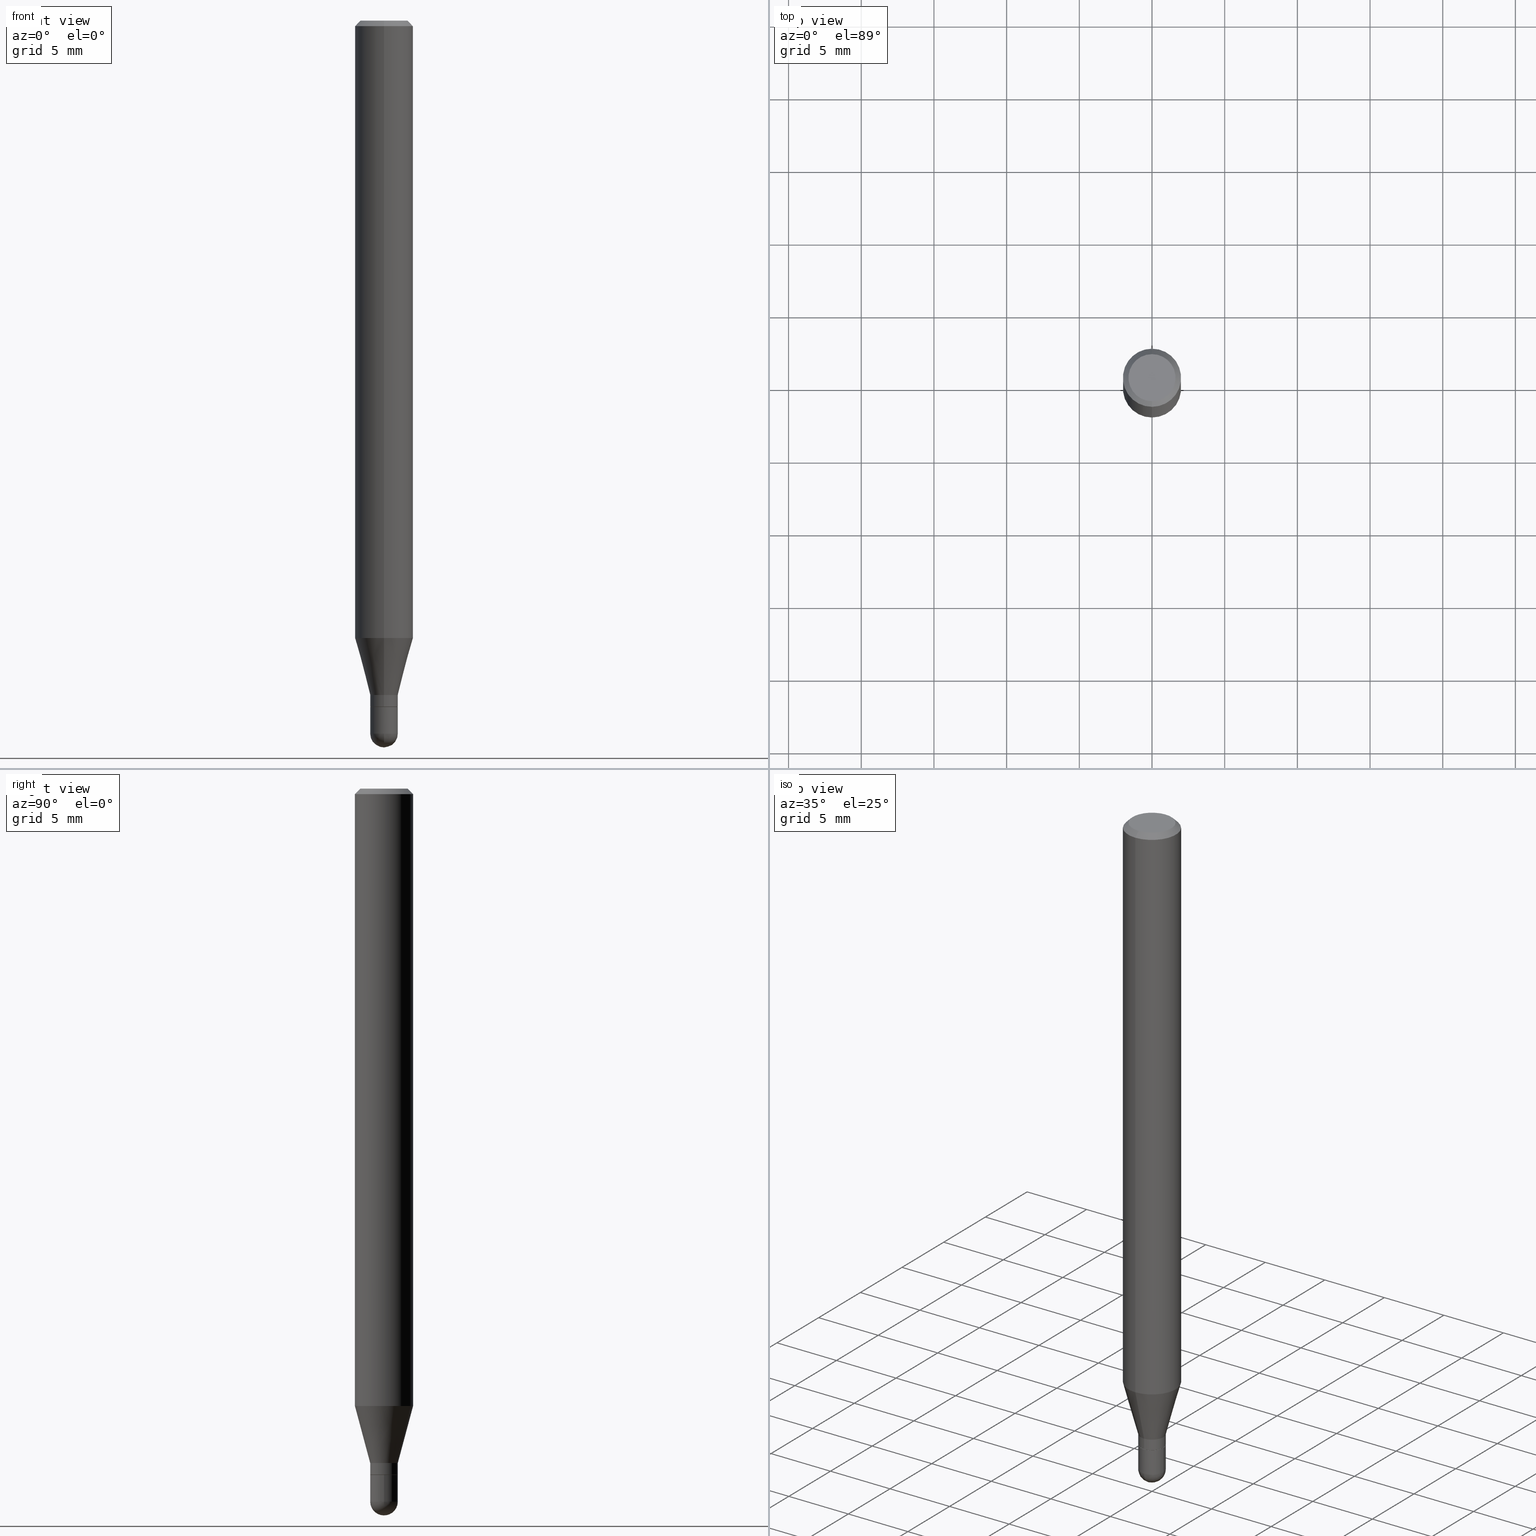
[diagram: canonical four-view strip — front | top / right | iso, engineering-drawing reading convention]
A machine part, canonical four-view strip (front | top / right | iso — engineering-drawing reading convention). The complete STEP part file that produces these views, byte-faithful:
ISO-10303-21;
HEADER;
FILE_DESCRIPTION (( 'STEP AP203' ),
    '1' );
FILE_NAME ('02040.STEP',
    '2024-03-07T19:59:12',
    ( '' ),
    ( '' ),
    'SwSTEP 2.0',
    'SolidWorks 2023',
    '' );
FILE_SCHEMA (( 'CONFIG_CONTROL_DESIGN' ));
ENDSEC;

DATA;
#1 = APPROVAL_ROLE ( '' ) ;
#2 = AXIS2_PLACEMENT_3D ( 'NONE', #67, #350, #188 ) ;
#3 = PERSON_AND_ORGANIZATION_ROLE ( 'classification_officer' ) ;
#4 = CARTESIAN_POINT ( 'NONE',  ( 2.657429831743214183E-16, 0.03739999999999330665, -1.857800000000000118 ) ) ;
#5 = DIRECTION ( 'NONE',  ( -2.445444900706578132E-29, 3.491515572849056349E-15, 1.000000000000000000 ) ) ;
#6 = ORIENTED_EDGE ( 'NONE', *, *, #474, .F. ) ;
#7 = APPROVAL_STATUS ( 'not_yet_approved' ) ;
#8 = ADVANCED_FACE ( 'NONE', ( #266 ), #464, .T. ) ;
#9 = DIRECTION ( 'NONE',  ( -2.445444900706578132E-29, 3.491515572849056349E-15, 1.000000000000000000 ) ) ;
#10 = CARTESIAN_POINT ( 'NONE',  ( 5.595524044111200197E-16, 0.07874999999999994504, -0.01500000000000004108 ) ) ;
#11 = ORIENTED_EDGE ( 'NONE', *, *, #265, .F. ) ;
#12 = LINE ( 'NONE', #488, #235 ) ;
#13 = ORIENTED_EDGE ( 'NONE', *, *, #316, .F. ) ;
#14 = CALENDAR_DATE ( 2024, 7, 3 ) ;
#15 = AXIS2_PLACEMENT_3D ( 'NONE', #145, #134, #175 ) ;
#16 = DIRECTION ( 'NONE',  ( -2.445444900706578413E-29, 3.491515572849055955E-15, 1.000000000000000000 ) ) ;
#17 = DIRECTION ( 'NONE',  ( 4.937700262164548042E-15, 0.7071067811865451302, -0.7071067811865499042 ) ) ;
#18 = EDGE_LOOP ( 'NONE', ( #459, #306, #136, #11 ) ) ;
#19 = CARTESIAN_POINT ( 'NONE',  ( -5.499083108677933457E-16, -0.07875000000000000056, 2.749568513618631485E-16 ) ) ;
#20 = DIRECTION ( 'NONE',  ( -4.851104656540964275E-15, -0.7071067811865500152, -0.7071067811865450192 ) ) ;
#21 = VERTEX_POINT ( 'NONE', #222 ) ;
#22 = EDGE_CURVE ( 'NONE', #227, #155, #355, .T. ) ;
#23 = CARTESIAN_POINT ( 'NONE',  ( 0.000000000000000000, 0.000000000000000000, 0.000000000000000000 ) ) ;
#24 = ADVANCED_FACE ( 'NONE', ( #30 ), #116, .F. ) ;
#25 = ORIENTED_EDGE ( 'NONE', *, *, #29, .T. ) ;
#26 = AXIS2_PLACEMENT_3D ( 'NONE', #332, #483, #135 ) ;
#27 = AXIS2_PLACEMENT_3D ( 'NONE', #360, #162, #313 ) ;
#28 = DIRECTION ( 'NONE',  ( 1.000000000000000000, -6.982962677686276177E-15, 0.000000000000000000 ) ) ;
#29 = EDGE_CURVE ( 'NONE', #504, #66, #441, .T. ) ;
#30 = FACE_OUTER_BOUND ( 'NONE', #391, .T. ) ;
#31 = CARTESIAN_POINT ( 'NONE',  ( 5.595524044111194280E-16, 0.07874999999999411637, -1.672179699107027684 ) ) ;
#32 = SPHERICAL_SURFACE ( 'NONE', #2, 0.03739999999999986391 ) ;
#33 = DIRECTION ( 'NONE',  ( -6.982962677686265133E-15, -1.000000000000000000, 0.000000000000000000 ) ) ;
#34 = CIRCLE ( 'NONE', #77, 0.03739999999999992636 ) ;
#35 = DIRECTION ( 'NONE',  ( -2.445468806185136597E-29, 3.491481338843145583E-15, 1.000000000000000000 ) ) ;
#36 = CARTESIAN_POINT ( 'NONE',  ( -5.749252365424432969E-45, 8.208569393781345367E-31, 2.351004663308204061E-16 ) ) ;
#37 = CIRCLE ( 'NONE', #70, 0.06375000000000000111 ) ;
#38 = ORIENTED_EDGE ( 'NONE', *, *, #481, .F. ) ;
#39 = DIRECTION ( 'NONE',  ( -2.445444900706578413E-29, 3.491515572849055955E-15, 1.000000000000000000 ) ) ;
#40 = PERSON_AND_ORGANIZATION_ROLE ( 'design_supplier' ) ;
#41 = DIRECTION ( 'NONE',  ( 2.445444900706578413E-29, -3.491515572849055955E-15, -1.000000000000000000 ) ) ;
#42 = DIRECTION ( 'NONE',  ( 1.000000000000000000, -6.982962677686276177E-15, 0.000000000000000000 ) ) ;
#43 = EDGE_LOOP ( 'NONE', ( #147, #234, #218, #182 ) ) ;
#44 = CIRCLE ( 'NONE', #119, 0.06375000000000000111 ) ;
#45 = ADVANCED_FACE ( 'NONE', ( #202 ), #159, .T. ) ;
#46 = DATE_AND_TIME ( #366, #319 ) ;
#47 = APPROVAL_PERSON_ORGANIZATION ( #330, #505, #457 ) ;
#48 = DIRECTION ( 'NONE',  ( 2.438088387897960049E-29, -3.491481338843145188E-15, -1.000000000000000000 ) ) ;
#49 = FACE_OUTER_BOUND ( 'NONE', #456, .T. ) ;
#50 = ORIENTED_EDGE ( 'NONE', *, *, #209, .T. ) ;
#51 = DATE_TIME_ROLE ( 'creation_date' ) ;
#52 = MANIFOLD_SOLID_BREP ( 'Body-Move/Copy2[2]', #84 ) ;
#53 = DIRECTION ( 'NONE',  ( -6.982962677686265133E-15, -1.000000000000000000, 0.000000000000000000 ) ) ;
#54 = CARTESIAN_POINT ( 'NONE',  ( -0.03739999999999999575, -6.349566709531830924E-15, -1.931100000000000039 ) ) ;
#55 = VERTEX_POINT ( 'NONE', #314 ) ;
#56 = PERSON_AND_ORGANIZATION_ROLE ( 'creator' ) ;
#57 = CARTESIAN_POINT ( 'NONE',  ( 4.089223318246340939E-29, -5.838441460034234985E-15, -1.672179699107027462 ) ) ;
#58 = CARTESIAN_POINT ( 'NONE',  ( -2.611628041454658086E-16, -0.03739999999999991942, 1.305826824245544317E-16 ) ) ;
#59 = FACE_OUTER_BOUND ( 'NONE', #479, .T. ) ;
#60 = ORIENTED_EDGE ( 'NONE', *, *, #191, .T. ) ;
#61 = CIRCLE ( 'NONE', #286, 0.03740000000000000269 ) ;
#62 = DIRECTION ( 'NONE',  ( -2.445444900706578413E-29, 3.491515572849055955E-15, 1.000000000000000000 ) ) ;
#63 = CARTESIAN_POINT ( 'NONE',  ( 3.668167351059810218E-31, -5.237273359273502137E-17, -0.01499999999999976526 ) ) ;
#64 = ORIENTED_EDGE ( 'NONE', *, *, #399, .F. ) ;
#65 = CARTESIAN_POINT ( 'NONE',  ( -4.888104823412213911E-16, -0.06375000000000000111, 4.576845840999477074E-16 ) ) ;
#66 = VERTEX_POINT ( 'NONE', #256 ) ;
#67 = CARTESIAN_POINT ( 'NONE',  ( 4.719246489702586893E-29, -6.746979792468809497E-15, -1.931100000000000039 ) ) ;
#68 = ORIENTED_EDGE ( 'NONE', *, *, #338, .T. ) ;
#69 = UNCERTAINTY_MEASURE_WITH_UNIT (LENGTH_MEASURE( 1.000000000000000082E-05 ), #126, 'distance_accuracy_value', 'NONE');
#70 = AXIS2_PLACEMENT_3D ( 'NONE', #36, #273, #439 ) ;
#71 = ORGANIZATION ( 'UNSPECIFIED', 'UNSPECIFIED', '' ) ;
#72 = ORIENTED_EDGE ( 'NONE', *, *, #402, .F. ) ;
#73 = DIRECTION ( 'NONE',  ( -6.982962677686266711E-15, -1.000000000000000000, 3.491515572849056349E-15 ) ) ;
#74 = ORIENTED_EDGE ( 'NONE', *, *, #191, .F. ) ;
#75 = DIRECTION ( 'NONE',  ( -2.445444900706578413E-29, 3.491515572849055955E-15, 1.000000000000000000 ) ) ;
#76 = EDGE_CURVE ( 'NONE', #412, #142, #205, .T. ) ;
#77 = AXIS2_PLACEMENT_3D ( 'NONE', #294, #409, #326 ) ;
#78 = EDGE_CURVE ( 'NONE', #351, #66, #123, .T. ) ;
#79 = DIRECTION ( 'NONE',  ( 1.000000000000000000, -6.982962677686274599E-15, 0.000000000000000000 ) ) ;
#80 = EDGE_CURVE ( 'NONE', #448, #344, #244, .T. ) ;
#81 = DIRECTION ( 'NONE',  ( 2.445444900706578132E-29, -3.491515572849056349E-15, -1.000000000000000000 ) ) ;
#82 = CARTESIAN_POINT ( 'NONE',  ( 3.668167351059810218E-31, -5.237273359273502137E-17, -0.01499999999999976526 ) ) ;
#83 = APPLICATION_CONTEXT ( 'configuration controlled 3d designs of mechanical parts and assemblies' ) ;
#84 = CLOSED_SHELL ( 'NONE', ( #434, #109, #200, #469, #427, #365, #45, #346, #480, #24, #231, #118 ) ) ;
#85 = AXIS2_PLACEMENT_3D ( 'NONE', #82, #39, #102 ) ;
#86 = DATE_AND_TIME ( #445, #362 ) ;
#87 = CARTESIAN_POINT ( 'NONE',  ( 4.544370258983034679E-29, -6.488283389025400978E-15, -1.858300000000000063 ) ) ;
#88 = PERSON_AND_ORGANIZATION ( #425, #71 ) ;
#89 = CARTESIAN_POINT ( 'NONE',  ( 2.611628041455117597E-16, 0.03739999999999351482, -1.858300000000000063 ) ) ;
#90 = DIRECTION ( 'NONE',  ( 1.000000000000000000, -6.982962677686276177E-15, 0.000000000000000000 ) ) ;
#91 = ORIENTED_EDGE ( 'NONE', *, *, #80, .T. ) ;
#92 = AXIS2_PLACEMENT_3D ( 'NONE', #63, #281, #217 ) ;
#93 = SHAPE_DEFINITION_REPRESENTATION ( #212, #320 ) ;
#94 = EDGE_CURVE ( 'NONE', #155, #504, #124, .T. ) ;
#95 = FACE_OUTER_BOUND ( 'NONE', #379, .T. ) ;
#96 = DIRECTION ( 'NONE',  ( 1.000000000000000000, -6.982962677686265922E-15, 4.883557194083112340E-29 ) ) ;
#97 = ORIENTED_EDGE ( 'NONE', *, *, #131, .T. ) ;
#98 =( NAMED_UNIT ( * ) PLANE_ANGLE_UNIT ( ) SI_UNIT ( $, .RADIAN. ) );
#99 = DIRECTION ( 'NONE',  ( 6.982962677686264344E-15, 1.000000000000000000, -3.496114991891765576E-15 ) ) ;
#100 = VERTEX_POINT ( 'NONE', #458 ) ;
#101 = COORDINATED_UNIVERSAL_TIME_OFFSET ( 5, 0, .BEHIND. ) ;
#102 = DIRECTION ( 'NONE',  ( -6.982962677686264344E-15, -1.000000000000000000, 3.496114991891765576E-15 ) ) ;
#103 = CARTESIAN_POINT ( 'NONE',  ( 5.499083108677937401E-16, 0.07874999999999994504, -0.01500000000000004108 ) ) ;
#104 = ORIENTED_EDGE ( 'NONE', *, *, #195, .T. ) ;
#105 = CONICAL_SURFACE ( 'NONE', #300, 0.07875000000000000056, 0.7853981633974483900 ) ;
#106 = CC_DESIGN_APPROVAL ( #417, ( #470 ) ) ;
#107 = CARTESIAN_POINT ( 'NONE',  ( 2.621902694955223933E-16, 0.03689999999999351438, -1.858300000000000063 ) ) ;
#108 = ORIENTED_EDGE ( 'NONE', *, *, #357, .F. ) ;
#109 = ADVANCED_FACE ( 'NONE', ( #248 ), #431, .T. ) ;
#110 = ORIENTED_EDGE ( 'NONE', *, *, #94, .T. ) ;
#111 = CC_DESIGN_DATE_AND_TIME_ASSIGNMENT ( #166, #203, ( #186 ) ) ;
#112 = ORIENTED_EDGE ( 'NONE', *, *, #143, .F. ) ;
#113 = CYLINDRICAL_SURFACE ( 'NONE', #224, 0.03739999999999991942 ) ;
#114 = AXIS2_PLACEMENT_3D ( 'NONE', #168, #239, #413 ) ;
#115 = AXIS2_PLACEMENT_3D ( 'NONE', #305, #152, #117 ) ;
#116 = PLANE ( 'NONE',  #354 ) ;
#117 = DIRECTION ( 'NONE',  ( -6.982962677686265133E-15, -1.000000000000000000, 0.000000000000000000 ) ) ;
#118 = ADVANCED_FACE ( 'NONE', ( #49 ), #447, .T. ) ;
#119 = AXIS2_PLACEMENT_3D ( 'NONE', #129, #493, #280 ) ;
#120 = AXIS2_PLACEMENT_3D ( 'NONE', #23, #183, #353 ) ;
#121 = DIRECTION ( 'NONE',  ( -2.445468806185136597E-29, 3.491481338843145583E-15, 1.000000000000000000 ) ) ;
#122 = AXIS2_PLACEMENT_3D ( 'NONE', #359, #419, #42 ) ;
#123 = CIRCLE ( 'NONE', #312, 0.03739999999999986391 ) ;
#124 = CIRCLE ( 'NONE', #185, 0.03739999999999999575 ) ;
#125 = LOCAL_TIME ( 14, 59, 11.00000000000000000, #238 ) ;
#126 =( CONVERSION_BASED_UNIT ( 'INCH', #358 ) LENGTH_UNIT ( ) NAMED_UNIT ( #432 ) );
#127 = EDGE_CURVE ( 'NONE', #163, #21, #414, .T. ) ;
#128 = APPROVAL_ROLE ( '' ) ;
#129 = CARTESIAN_POINT ( 'NONE',  ( -5.749252365424432969E-45, 8.208569393781345367E-31, 2.351004663308204061E-16 ) ) ;
#130 = CARTESIAN_POINT ( 'NONE',  ( 4.722444811624117324E-29, -6.742399613439998507E-15, -1.931100000000000039 ) ) ;
#131 = EDGE_CURVE ( 'NONE', #339, #220, #497, .T. ) ;
#132 = ORIENTED_EDGE ( 'NONE', *, *, #94, .F. ) ;
#133 = APPROVAL_DATE_TIME ( #476, #417 ) ;
#134 = DIRECTION ( 'NONE',  ( -2.445444900706578413E-29, 3.491515572849055955E-15, 1.000000000000000000 ) ) ;
#135 = DIRECTION ( 'NONE',  ( -6.982962677686265133E-15, -1.000000000000000000, 0.000000000000000000 ) ) ;
#136 = ORIENTED_EDGE ( 'NONE', *, *, #402, .T. ) ;
#137 = CIRCLE ( 'NONE', #15, 0.03690000000000000224 ) ;
#138 = CARTESIAN_POINT ( 'NONE',  ( 0.000000000000000000, 0.000000000000000000, 0.000000000000000000 ) ) ;
#139 = CC_DESIGN_SECURITY_CLASSIFICATION ( #186, ( #349 ) ) ;
#140 = FACE_OUTER_BOUND ( 'NONE', #310, .T. ) ;
#141 = CARTESIAN_POINT ( 'NONE',  ( -2.657429831742297132E-16, -0.03740000000000667096, -1.931100000000000039 ) ) ;
#142 = VERTEX_POINT ( 'NONE', #148 ) ;
#143 = EDGE_CURVE ( 'NONE', #100, #142, #198, .T. ) ;
#144 = COORDINATED_UNIVERSAL_TIME_OFFSET ( 5, 0, .BEHIND. ) ;
#145 = CARTESIAN_POINT ( 'NONE',  ( 4.544370258983034679E-29, -6.488283389025400978E-15, -1.858300000000000063 ) ) ;
#146 = DIRECTION ( 'NONE',  ( -2.445468806185136597E-29, 3.491481338843145583E-15, 1.000000000000000000 ) ) ;
#147 = ORIENTED_EDGE ( 'NONE', *, *, #78, .F. ) ;
#148 = CARTESIAN_POINT ( 'NONE',  ( -2.611628041454210900E-16, -0.03740000000000629626, -1.826500000000000012 ) ) ;
#149 = EDGE_LOOP ( 'NONE', ( #262, #156, #225, #304 ) ) ;
#150 = PRODUCT ( '02040', '02040', '', ( #372 ) ) ;
#151 = AXIS2_PLACEMENT_3D ( 'NONE', #477, #387, #382 ) ;
#152 = DIRECTION ( 'NONE',  ( -2.445444900706578413E-29, 3.491515572849055955E-15, 1.000000000000000000 ) ) ;
#153 = EDGE_CURVE ( 'NONE', #55, #347, #421, .T. ) ;
#154 = DIRECTION ( 'NONE',  ( -1.000000000000000000, 6.982962677686265922E-15, -4.883557194083112901E-29 ) ) ;
#155 = VERTEX_POINT ( 'NONE', #141 ) ;
#156 = ORIENTED_EDGE ( 'NONE', *, *, #221, .T. ) ;
#157 = AXIS2_PLACEMENT_3D ( 'NONE', #87, #337, #53 ) ;
#158 = LINE ( 'NONE', #435, #192 ) ;
#159 = CYLINDRICAL_SURFACE ( 'NONE', #177, 0.07875000000000000056 ) ;
#160 = FACE_OUTER_BOUND ( 'NONE', #213, .T. ) ;
#161 =( GEOMETRIC_REPRESENTATION_CONTEXT ( 3 ) GLOBAL_UNCERTAINTY_ASSIGNED_CONTEXT ( ( #69 ) ) GLOBAL_UNIT_ASSIGNED_CONTEXT ( ( #126, #98, #336 ) ) REPRESENTATION_CONTEXT ( 'NONE', 'WORKASPACE' ) );
#162 = DIRECTION ( 'NONE',  ( -1.000000000000000000, 7.105427357601001070E-15, -4.926315508542082329E-29 ) ) ;
#163 = VERTEX_POINT ( 'NONE', #65 ) ;
#164 = CONICAL_SURFACE ( 'NONE', #461, 0.03739999999999991942, 0.2617993877991505736 ) ;
#165 = CC_DESIGN_APPROVAL ( #509, ( #186 ) ) ;
#166 = DATE_AND_TIME ( #171, #214 ) ;
#167 = CC_DESIGN_PERSON_AND_ORGANIZATION_ASSIGNMENT ( #368, #3, ( #186 ) ) ;
#168 = CARTESIAN_POINT ( 'NONE',  ( 4.089223318246340939E-29, -5.838441460034234985E-15, -1.672179699107027462 ) ) ;
#169 = CARTESIAN_POINT ( 'NONE',  ( 4.544414682533838949E-29, -6.488219771972217332E-15, -1.858300000000000063 ) ) ;
#170 = ORIENTED_EDGE ( 'NONE', *, *, #474, .T. ) ;
#171 = CALENDAR_DATE ( 2024, 7, 3 ) ;
#172 = LINE ( 'NONE', #377, #437 ) ;
#173 = LINE ( 'NONE', #327, #223 ) ;
#174 = ORIENTED_EDGE ( 'NONE', *, *, #195, .F. ) ;
#175 = DIRECTION ( 'NONE',  ( -6.982962677686265133E-15, -1.000000000000000000, 0.000000000000000000 ) ) ;
#176 = EDGE_LOOP ( 'NONE', ( #426, #499, #108, #335 ) ) ;
#177 = AXIS2_PLACEMENT_3D ( 'NONE', #197, #275, #363 ) ;
#178 = DIRECTION ( 'NONE',  ( -2.445444900706578132E-29, 3.491515572849056349E-15, 1.000000000000000000 ) ) ;
#179 = DIRECTION ( 'NONE',  ( -2.445468806185136877E-29, 3.491481338843145188E-15, 1.000000000000000000 ) ) ;
#180 = ORIENTED_EDGE ( 'NONE', *, *, #399, .T. ) ;
#181 = CARTESIAN_POINT ( 'NONE',  ( 0.03739999999999999575, -2.611628041454663509E-16, 1.823690114147680082E-30 ) ) ;
#182 = ORIENTED_EDGE ( 'NONE', *, *, #367, .F. ) ;
#183 = DIRECTION ( 'NONE',  ( -2.445444900706578413E-29, 3.491515572849055955E-15, 1.000000000000000000 ) ) ;
#184 = ORIENTED_EDGE ( 'NONE', *, *, #301, .F. ) ;
#185 = AXIS2_PLACEMENT_3D ( 'NONE', #130, #410, #90 ) ;
#186 = SECURITY_CLASSIFICATION ( '', '', #380 ) ;
#187 = ORIENTED_EDGE ( 'NONE', *, *, #29, .F. ) ;
#188 = DIRECTION ( 'NONE',  ( 6.982962677686265922E-15, 1.000000000000000000, 0.000000000000000000 ) ) ;
#189 = CYLINDRICAL_SURFACE ( 'NONE', #120, 0.07875000000000000056 ) ;
#190 = CARTESIAN_POINT ( 'NONE',  ( 4.544370258983034679E-29, -6.488283389025400978E-15, -1.858300000000000063 ) ) ;
#191 = EDGE_CURVE ( 'NONE', #21, #220, #333, .T. ) ;
#192 = VECTOR ( 'NONE', #311, 39.37007874015748143 ) ;
#193 = AXIS2_PLACEMENT_3D ( 'NONE', #89, #48, #373 ) ;
#194 =( LENGTH_UNIT ( ) NAMED_UNIT ( * ) SI_UNIT ( $, .METRE. ) );
#195 = EDGE_CURVE ( 'NONE', #504, #344, #383, .T. ) ;
#196 = CC_DESIGN_PERSON_AND_ORGANIZATION_ASSIGNMENT ( #250, #254, ( #150 ) ) ;
#197 = CARTESIAN_POINT ( 'NONE',  ( 0.000000000000000000, 0.000000000000000000, 0.000000000000000000 ) ) ;
#198 = CIRCLE ( 'NONE', #26, 0.03739999999999991942 ) ;
#199 = APPLICATION_PROTOCOL_DEFINITION ( 'international standard', 'config_control_design', 1994, #83 ) ;
#200 = ADVANCED_FACE ( 'NONE', ( #291 ), #442, .T. ) ;
#201 = CYLINDRICAL_SURFACE ( 'NONE', #258, 0.03739999999999999575 ) ;
#202 = FACE_OUTER_BOUND ( 'NONE', #18, .T. ) ;
#203 = DATE_TIME_ROLE ( 'classification_date' ) ;
#204 = LINE ( 'NONE', #251, #348 ) ;
#205 = LINE ( 'NONE', #58, #385 ) ;
#206 = EDGE_LOOP ( 'NONE', ( #257, #292, #485, #503 ) ) ;
#207 = FACE_OUTER_BOUND ( 'NONE', #288, .T. ) ;
#208 = ORIENTED_EDGE ( 'NONE', *, *, #265, .T. ) ;
#209 = EDGE_CURVE ( 'NONE', #227, #448, #243, .T. ) ;
#210 = CARTESIAN_POINT ( 'NONE',  ( 4.466605111140565773E-29, -6.377253193808800564E-15, -1.826500000000000012 ) ) ;
#211 = DIRECTION ( 'NONE',  ( -2.445444900706578413E-29, 3.491515572849055955E-15, 1.000000000000000000 ) ) ;
#212 = PRODUCT_DEFINITION_SHAPE ( 'NONE', 'NONE',  #470 ) ;
#213 = EDGE_LOOP ( 'NONE', ( #324, #491, #110, #104, #415 ) ) ;
#214 = LOCAL_TIME ( 14, 59, 11.00000000000000000, #101 ) ;
#215 = EDGE_CURVE ( 'NONE', #142, #100, #267, .T. ) ;
#216 = LINE ( 'NONE', #19, #453 ) ;
#217 = DIRECTION ( 'NONE',  ( -6.982962677686264344E-15, -1.000000000000000000, 3.496114991891765576E-15 ) ) ;
#218 = ORIENTED_EDGE ( 'NONE', *, *, #22, .F. ) ;
#219 = CARTESIAN_POINT ( 'NONE',  ( 0.000000000000000000, 0.000000000000000000, 0.000000000000000000 ) ) ;
#220 = VERTEX_POINT ( 'NONE', #10 ) ;
#221 = EDGE_CURVE ( 'NONE', #347, #100, #173, .T. ) ;
#222 = CARTESIAN_POINT ( 'NONE',  ( -5.499083108677930499E-16, -0.07875000000000004219, -0.01499999999999948944 ) ) ;
#223 = VECTOR ( 'NONE', #378, 39.37007874015748143 ) ;
#224 = AXIS2_PLACEMENT_3D ( 'NONE', #219, #507, #73 ) ;
#225 = ORIENTED_EDGE ( 'NONE', *, *, #215, .F. ) ;
#226 = CARTESIAN_POINT ( 'NONE',  ( -0.03740000000000000269, -6.349566709531830924E-15, -1.858300000000000063 ) ) ;
#227 = VERTEX_POINT ( 'NONE', #54 ) ;
#228 = CYLINDRICAL_SURFACE ( 'NONE', #475, 0.03739999999999999575 ) ;
#229 = VECTOR ( 'NONE', #20, 39.37007874015748143 ) ;
#230 = ADVANCED_FACE ( 'NONE', ( #207 ), #32, .T. ) ;
#231 = ADVANCED_FACE ( 'NONE', ( #59 ), #510, .T. ) ;
#232 = CARTESIAN_POINT ( 'NONE',  ( -5.499083108677527193E-16, -0.07875000000000587086, -1.672179699107027018 ) ) ;
#233 = CARTESIAN_POINT ( 'NONE',  ( 0.03739999999999999575, -6.876472496851574714E-15, -1.931100000000000039 ) ) ;
#234 = ORIENTED_EDGE ( 'NONE', *, *, #481, .T. ) ;
#235 = VECTOR ( 'NONE', #451, 39.37007874015748143 ) ;
#236 = EDGE_CURVE ( 'NONE', #344, #448, #61, .T. ) ;
#237 = PRODUCT_RELATED_PRODUCT_CATEGORY ( 'detail', '', ( #150 ) ) ;
#238 = COORDINATED_UNIVERSAL_TIME_OFFSET ( 5, 0, .BEHIND. ) ;
#239 = DIRECTION ( 'NONE',  ( -2.445444900706578413E-29, 3.491515572849055955E-15, 1.000000000000000000 ) ) ;
#240 = APPROVAL_DATE_TIME ( #279, #505 ) ;
#241 = DIRECTION ( 'NONE',  ( -6.982962677686264344E-15, -1.000000000000000000, 3.469013325287953293E-15 ) ) ;
#242 = EDGE_CURVE ( 'NONE', #339, #163, #37, .T. ) ;
#243 = LINE ( 'NONE', #252, #487 ) ;
#244 = CIRCLE ( 'NONE', #394, 0.03740000000000000269 ) ;
#245 = APPROVAL_PERSON_ORGANIZATION ( #407, #509, #1 ) ;
#246 = ORIENTED_EDGE ( 'NONE', *, *, #127, .F. ) ;
#247 = DIRECTION ( 'NONE',  ( -6.982962677686265133E-15, -1.000000000000000000, 0.000000000000000000 ) ) ;
#248 = FACE_OUTER_BOUND ( 'NONE', #176, .T. ) ;
#249 = ORIENTED_EDGE ( 'NONE', *, *, #398, .T. ) ;
#250 = PERSON_AND_ORGANIZATION ( #425, #71 ) ;
#251 = CARTESIAN_POINT ( 'NONE',  ( 5.595524044110787031E-16, 0.07875000000000000056, -2.749568513618631485E-16 ) ) ;
#252 = CARTESIAN_POINT ( 'NONE',  ( -0.03739999999999999575, 2.657429831742774393E-16, -1.839681723755334690E-30 ) ) ;
#253 = ORIENTED_EDGE ( 'NONE', *, *, #242, .F. ) ;
#254 = PERSON_AND_ORGANIZATION_ROLE ( 'design_owner' ) ;
#255 = FACE_OUTER_BOUND ( 'NONE', #299, .T. ) ;
#256 = CARTESIAN_POINT ( 'NONE',  ( 2.611628041455130416E-16, 0.03739999999999318175, -1.931100000000000039 ) ) ;
#257 = ORIENTED_EDGE ( 'NONE', *, *, #215, .T. ) ;
#258 = AXIS2_PLACEMENT_3D ( 'NONE', #278, #482, #404 ) ;
#259 = CONICAL_SURFACE ( 'NONE', #115, 0.03739999999999991942, 0.2617993877991505736 ) ;
#260 = DIRECTION ( 'NONE',  ( 5.024295867788190974E-15, 0.7071067811865681119, 0.7071067811865270336 ) ) ;
#261 = CC_DESIGN_PERSON_AND_ORGANIZATION_ASSIGNMENT ( #376, #40, ( #349 ) ) ;
#262 = ORIENTED_EDGE ( 'NONE', *, *, #357, .T. ) ;
#263 = ORIENTED_EDGE ( 'NONE', *, *, #236, .F. ) ;
#264 = CARTESIAN_POINT ( 'NONE',  ( -2.611628041454212872E-16, -0.03740000000000653912, -1.857800000000000118 ) ) ;
#265 = EDGE_CURVE ( 'NONE', #220, #21, #361, .T. ) ;
#266 = FACE_OUTER_BOUND ( 'NONE', #43, .T. ) ;
#267 = CIRCLE ( 'NONE', #450, 0.03739999999999991942 ) ;
#268 = CC_DESIGN_APPROVAL ( #505, ( #349 ) ) ;
#269 = CARTESIAN_POINT ( 'NONE',  ( 4.544370258983034679E-29, -6.488283389025400978E-15, -1.858300000000000063 ) ) ;
#270 = CARTESIAN_POINT ( 'NONE',  ( 4.543147536532682027E-29, -6.486537631238976575E-15, -1.857800000000000118 ) ) ;
#271 = CIRCLE ( 'NONE', #114, 0.07875000000000000056 ) ;
#272 = EDGE_CURVE ( 'NONE', #495, #462, #271, .T. ) ;
#273 = DIRECTION ( 'NONE',  ( -2.445444900706578413E-29, 3.491515572849055955E-15, 1.000000000000000000 ) ) ;
#274 = CARTESIAN_POINT ( 'NONE',  ( 0.000000000000000000, 0.000000000000000000, 0.000000000000000000 ) ) ;
#275 = DIRECTION ( 'NONE',  ( -2.445444900706578413E-29, 3.491515572849055955E-15, 1.000000000000000000 ) ) ;
#276 = CIRCLE ( 'NONE', #157, 0.03690000000000000224 ) ;
#277 = DIRECTION ( 'NONE',  ( 1.000000000000000000, 0.000000000000000000, 0.000000000000000000 ) ) ;
#278 = CARTESIAN_POINT ( 'NONE',  ( 0.000000000000000000, 0.000000000000000000, 0.000000000000000000 ) ) ;
#279 = DATE_AND_TIME ( #14, #411 ) ;
#280 = DIRECTION ( 'NONE',  ( -6.982962677686264344E-15, -1.000000000000000000, 3.491515572849055560E-15 ) ) ;
#281 = DIRECTION ( 'NONE',  ( -2.445444900706578413E-29, 3.491515572849055955E-15, 1.000000000000000000 ) ) ;
#282 = ORIENTED_EDGE ( 'NONE', *, *, #242, .T. ) ;
#283 = APPROVAL_STATUS ( 'not_yet_approved' ) ;
#284 = CARTESIAN_POINT ( 'NONE',  ( 3.668167351059810218E-31, -5.237273359273502137E-17, -0.01499999999999976526 ) ) ;
#285 = DIRECTION ( 'NONE',  ( -2.445444900706578413E-29, 3.491515572849055955E-15, 1.000000000000000000 ) ) ;
#286 = AXIS2_PLACEMENT_3D ( 'NONE', #400, #121, #79 ) ;
#287 = AXIS2_PLACEMENT_3D ( 'NONE', #270, #75, #33 ) ;
#288 = EDGE_LOOP ( 'NONE', ( #38, #465, #187, #132 ) ) ;
#289 = DIRECTION ( 'NONE',  ( 0.000000000000000000, 0.000000000000000000, 1.000000000000000000 ) ) ;
#290 = DIRECTION ( 'NONE',  ( -1.807323732225332111E-15, -0.2588190451025184635, 0.9659258262890689783 ) ) ;
#291 = FACE_OUTER_BOUND ( 'NONE', #386, .T. ) ;
#292 = ORIENTED_EDGE ( 'NONE', *, *, #484, .T. ) ;
#293 = PERSON_AND_ORGANIZATION_ROLE ( 'creator' ) ;
#294 = CARTESIAN_POINT ( 'NONE',  ( 4.543147536532682027E-29, -6.486537631238976575E-15, -1.857800000000000118 ) ) ;
#295 = DIRECTION ( 'NONE',  ( 1.000000000000000000, -6.982962677686274599E-15, 0.000000000000000000 ) ) ;
#296 = ORIENTED_EDGE ( 'NONE', *, *, #272, .T. ) ;
#297 = EDGE_CURVE ( 'NONE', #423, #412, #12, .T. ) ;
#298 = DIRECTION ( 'NONE',  ( -2.445468806185136877E-29, 3.491481338843145188E-15, 1.000000000000000000 ) ) ;
#299 = EDGE_LOOP ( 'NONE', ( #420, #50, #263, #174, #25 ) ) ;
#300 = AXIS2_PLACEMENT_3D ( 'NONE', #284, #41, #418 ) ;
#301 = EDGE_CURVE ( 'NONE', #55, #423, #137, .T. ) ;
#302 = ORIENTED_EDGE ( 'NONE', *, *, #143, .T. ) ;
#303 = DIRECTION ( 'NONE',  ( -2.445444900706578413E-29, 3.491515572849055955E-15, 1.000000000000000000 ) ) ;
#304 = ORIENTED_EDGE ( 'NONE', *, *, #76, .F. ) ;
#305 = CARTESIAN_POINT ( 'NONE',  ( 4.466605111140565773E-29, -6.377253193808800564E-15, -1.826500000000000012 ) ) ;
#306 = ORIENTED_EDGE ( 'NONE', *, *, #321, .T. ) ;
#307 = CLOSED_SHELL ( 'NONE', ( #343, #8, #406, #230, #498 ) ) ;
#308 = VECTOR ( 'NONE', #298, 39.37007874015748143 ) ;
#309 = DIRECTION ( 'NONE',  ( 6.982962677686265922E-15, 1.000000000000000000, -3.491515572849056349E-15 ) ) ;
#310 = EDGE_LOOP ( 'NONE', ( #246, #253, #97, #208 ) ) ;
#311 = DIRECTION ( 'NONE',  ( 1.839019923739602287E-15, 0.2588190451025252359, 0.9659258262890670910 ) ) ;
#312 = AXIS2_PLACEMENT_3D ( 'NONE', #424, #96, #494 ) ;
#313 = DIRECTION ( 'NONE',  ( -7.105427357601000281E-15, -1.000000000000000000, 0.000000000000000000 ) ) ;
#314 = CARTESIAN_POINT ( 'NONE',  ( 2.639666263349223495E-16, 0.03689999999999351438, -1.858300000000000063 ) ) ;
#315 = EDGE_LOOP ( 'NONE', ( #401, #91 ) ) ;
#316 = EDGE_CURVE ( 'NONE', #423, #55, #276, .T. ) ;
#317 = CALENDAR_DATE ( 2024, 7, 3 ) ;
#318 = AXIS2_PLACEMENT_3D ( 'NONE', #455, #211, #388 ) ;
#319 = LOCAL_TIME ( 14, 59, 11.00000000000000000, #144 ) ;
#320 = ADVANCED_BREP_SHAPE_REPRESENTATION ( '02040', ( #405, #52, #511 ), #161 ) ;
#321 = EDGE_CURVE ( 'NONE', #462, #495, #508, .T. ) ;
#322 = CARTESIAN_POINT ( 'NONE',  ( 4.812306184014676059E-29, -6.875271105027137597E-15, -1.968500000000000139 ) ) ;
#323 = CARTESIAN_POINT ( 'NONE',  ( -5.402642173245076924E-16, -0.07875000000000004219, -0.01499999999999948944 ) ) ;
#324 = ORIENTED_EDGE ( 'NONE', *, *, #209, .F. ) ;
#325 = PERSON_AND_ORGANIZATION ( #425, #71 ) ;
#326 = DIRECTION ( 'NONE',  ( -6.982962677686265133E-15, -1.000000000000000000, 0.000000000000000000 ) ) ;
#327 = CARTESIAN_POINT ( 'NONE',  ( 2.657429831742768970E-16, 0.03739999999999991942, -1.305826824245544317E-16 ) ) ;
#328 = ORIENTED_EDGE ( 'NONE', *, *, #76, .T. ) ;
#329 = APPLICATION_CONTEXT ( 'configuration controlled 3d designs of mechanical parts and assemblies' ) ;
#330 = PERSON_AND_ORGANIZATION ( #425, #71 ) ;
#331 = CARTESIAN_POINT ( 'NONE',  ( 4.975360907851465623E-16, 0.06375000000000000111, 1.251634856169309859E-17 ) ) ;
#332 = CARTESIAN_POINT ( 'NONE',  ( 4.466605111140565773E-29, -6.377253193808800564E-15, -1.826500000000000012 ) ) ;
#333 = CIRCLE ( 'NONE', #92, 0.07875000000000000056 ) ;
#334 = CIRCLE ( 'NONE', #287, 0.03739999999999992636 ) ;
#335 = ORIENTED_EDGE ( 'NONE', *, *, #297, .F. ) ;
#336 =( NAMED_UNIT ( * ) SI_UNIT ( $, .STERADIAN. ) SOLID_ANGLE_UNIT ( ) );
#337 = DIRECTION ( 'NONE',  ( -2.445444900706578413E-29, 3.491515572849055955E-15, 1.000000000000000000 ) ) ;
#338 = EDGE_CURVE ( 'NONE', #462, #220, #204, .T. ) ;
#339 = VERTEX_POINT ( 'NONE', #331 ) ;
#340 = CC_DESIGN_DATE_AND_TIME_ASSIGNMENT ( #86, #51, ( #470 ) ) ;
#341 = FACE_OUTER_BOUND ( 'NONE', #315, .T. ) ;
#342 = DIRECTION ( 'NONE',  ( -6.982962677686265133E-15, -1.000000000000000000, 0.000000000000000000 ) ) ;
#343 = ADVANCED_FACE ( 'NONE', ( #255 ), #201, .T. ) ;
#344 = VERTEX_POINT ( 'NONE', #370 ) ;
#345 = PLANE ( 'NONE',  #472 ) ;
#346 = ADVANCED_FACE ( 'NONE', ( #140 ), #105, .T. ) ;
#347 = VERTEX_POINT ( 'NONE', #4 ) ;
#348 = VECTOR ( 'NONE', #9, 39.37007874015748143 ) ;
#349 = PRODUCT_DEFINITION_FORMATION_WITH_SPECIFIED_SOURCE ( 'ANY', '', #150, .NOT_KNOWN. ) ;
#350 = DIRECTION ( 'NONE',  ( -1.000000000000000000, 6.982962677686265922E-15, -4.883557194083112901E-29 ) ) ;
#351 = VERTEX_POINT ( 'NONE', #322 ) ;
#352 = ORIENTED_EDGE ( 'NONE', *, *, #131, .F. ) ;
#353 = DIRECTION ( 'NONE',  ( -6.982962677686264344E-15, -1.000000000000000000, 3.491515572849055955E-15 ) ) ;
#354 = AXIS2_PLACEMENT_3D ( 'NONE', #269, #433, #506 ) ;
#355 = CIRCLE ( 'NONE', #384, 0.03739999999999999575 ) ;
#356 = AXIS2_PLACEMENT_3D ( 'NONE', #57, #16, #241 ) ;
#357 = EDGE_CURVE ( 'NONE', #412, #347, #34, .T. ) ;
#358 = LENGTH_MEASURE_WITH_UNIT ( LENGTH_MEASURE( 0.02539999999999999897 ), #194 );
#359 = CARTESIAN_POINT ( 'NONE',  ( 4.722444811624117324E-29, -6.742399613439998507E-15, -1.931100000000000039 ) ) ;
#360 = CARTESIAN_POINT ( 'NONE',  ( 4.719246489702586893E-29, -6.746979792468809497E-15, -1.931100000000000039 ) ) ;
#361 = CIRCLE ( 'NONE', #85, 0.07875000000000000056 ) ;
#362 = LOCAL_TIME ( 14, 59, 11.00000000000000000, #443 ) ;
#363 = DIRECTION ( 'NONE',  ( -6.982962677686264344E-15, -1.000000000000000000, 3.491515572849055955E-15 ) ) ;
#364 = ORIENTED_EDGE ( 'NONE', *, *, #297, .T. ) ;
#365 = ADVANCED_FACE ( 'NONE', ( #95 ), #164, .T. ) ;
#366 = CALENDAR_DATE ( 2024, 7, 3 ) ;
#367 = EDGE_CURVE ( 'NONE', #66, #227, #369, .T. ) ;
#368 = PERSON_AND_ORGANIZATION ( #425, #71 ) ;
#369 = CIRCLE ( 'NONE', #151, 0.03739999999999999575 ) ;
#370 = CARTESIAN_POINT ( 'NONE',  ( 0.03740000000000000269, -6.749382576117683733E-15, -1.858300000000000063 ) ) ;
#371 = CARTESIAN_POINT ( 'NONE',  ( 3.668167351059810218E-31, -5.237273359273502137E-17, -0.01499999999999976526 ) ) ;
#372 = MECHANICAL_CONTEXT ( 'NONE', #329, 'mechanical' ) ;
#373 = DIRECTION ( 'NONE',  ( -1.000000000000000000, 6.982962677686265922E-15, -4.876176775795935793E-29 ) ) ;
#374 = CARTESIAN_POINT ( 'NONE',  ( 4.466605111140565773E-29, -6.377253193808800564E-15, -1.826500000000000012 ) ) ;
#375 = ORIENTED_EDGE ( 'NONE', *, *, #301, .T. ) ;
#376 = PERSON_AND_ORGANIZATION ( #425, #71 ) ;
#377 = CARTESIAN_POINT ( 'NONE',  ( -2.611628041454210900E-16, -0.03740000000000629626, -1.826500000000000012 ) ) ;
#378 = DIRECTION ( 'NONE',  ( -2.445444900706578132E-29, 3.491515572849056349E-15, 1.000000000000000000 ) ) ;
#379 = EDGE_LOOP ( 'NONE', ( #389, #302, #249, #512 ) ) ;
#380 = SECURITY_CLASSIFICATION_LEVEL ( 'unclassified' ) ;
#381 = DESIGN_CONTEXT ( 'detailed design', #83, 'design' ) ;
#382 = DIRECTION ( 'NONE',  ( 1.000000000000000000, -6.982962677686276177E-15, 0.000000000000000000 ) ) ;
#383 = LINE ( 'NONE', #181, #308 ) ;
#384 = AXIS2_PLACEMENT_3D ( 'NONE', #430, #393, #28 ) ;
#385 = VECTOR ( 'NONE', #5, 39.37007874015748143 ) ;
#386 = EDGE_LOOP ( 'NONE', ( #64, #467, #60, #352 ) ) ;
#387 = DIRECTION ( 'NONE',  ( -2.445468806185136597E-29, 3.491481338843145583E-15, 1.000000000000000000 ) ) ;
#388 = DIRECTION ( 'NONE',  ( -6.982962677686266711E-15, -1.000000000000000000, 3.491515572849056349E-15 ) ) ;
#389 = ORIENTED_EDGE ( 'NONE', *, *, #484, .F. ) ;
#390 = FACE_OUTER_BOUND ( 'NONE', #206, .T. ) ;
#391 = EDGE_LOOP ( 'NONE', ( #13, #184 ) ) ;
#392 = CC_DESIGN_PERSON_AND_ORGANIZATION_ASSIGNMENT ( #325, #56, ( #349 ) ) ;
#393 = DIRECTION ( 'NONE',  ( -2.445468806185136597E-29, 3.491481338843145583E-15, 1.000000000000000000 ) ) ;
#394 = AXIS2_PLACEMENT_3D ( 'NONE', #169, #146, #295 ) ;
#395 = CIRCLE ( 'NONE', #27, 0.03739999999999986391 ) ;
#396 = EDGE_LOOP ( 'NONE', ( #296, #68, #74, #72 ) ) ;
#397 = ORIENTED_EDGE ( 'NONE', *, *, #153, .F. ) ;
#398 = EDGE_CURVE ( 'NONE', #142, #495, #172, .T. ) ;
#399 = EDGE_CURVE ( 'NONE', #163, #339, #44, .T. ) ;
#400 = CARTESIAN_POINT ( 'NONE',  ( 4.544414682533838949E-29, -6.488219771972217332E-15, -1.858300000000000063 ) ) ;
#401 = ORIENTED_EDGE ( 'NONE', *, *, #236, .T. ) ;
#402 = EDGE_CURVE ( 'NONE', #495, #21, #216, .T. ) ;
#403 = APPLICATION_PROTOCOL_DEFINITION ( 'international standard', 'config_control_design', 1994, #329 ) ;
#404 = DIRECTION ( 'NONE',  ( 1.000000000000000000, -6.982962677686266711E-15, 4.876176775795936353E-29 ) ) ;
#405 = MANIFOLD_SOLID_BREP ( 'Body-Move/Copy2[1]', #307 ) ;
#406 = ADVANCED_FACE ( 'NONE', ( #341 ), #446, .F. ) ;
#407 = PERSON_AND_ORGANIZATION ( #425, #71 ) ;
#408 = AXIS2_PLACEMENT_3D ( 'NONE', #190, #303, #440 ) ;
#409 = DIRECTION ( 'NONE',  ( -2.445444900706578413E-29, 3.491515572849055955E-15, 1.000000000000000000 ) ) ;
#410 = DIRECTION ( 'NONE',  ( -2.445468806185136597E-29, 3.491481338843145583E-15, 1.000000000000000000 ) ) ;
#411 = LOCAL_TIME ( 14, 59, 11.00000000000000000, #416 ) ;
#412 = VERTEX_POINT ( 'NONE', #264 ) ;
#413 = DIRECTION ( 'NONE',  ( -6.982962677686264344E-15, -1.000000000000000000, 3.469013325287953293E-15 ) ) ;
#414 = LINE ( 'NONE', #323, #229 ) ;
#415 = ORIENTED_EDGE ( 'NONE', *, *, #80, .F. ) ;
#416 = COORDINATED_UNIVERSAL_TIME_OFFSET ( 5, 0, .BEHIND. ) ;
#417 = APPROVAL ( #486, 'UNSPECIFIED' ) ;
#418 = DIRECTION ( 'NONE',  ( 6.982962677686264344E-15, 1.000000000000000000, -3.496114991891765576E-15 ) ) ;
#419 = DIRECTION ( 'NONE',  ( -2.445468806185136597E-29, 3.491481338843145583E-15, 1.000000000000000000 ) ) ;
#420 = ORIENTED_EDGE ( 'NONE', *, *, #367, .T. ) ;
#421 = LINE ( 'NONE', #107, #468 ) ;
#422 = AXIS2_PLACEMENT_3D ( 'NONE', #371, #478, #99 ) ;
#423 = VERTEX_POINT ( 'NONE', #429 ) ;
#424 = CARTESIAN_POINT ( 'NONE',  ( 4.719246489702586893E-29, -6.746979792468809497E-15, -1.931100000000000039 ) ) ;
#425 = PERSON ( 'UNSPECIFIED', 'UNSPECIFIED', 'UNSPECIFIED', ('UNSPECIFIED'), ('UNSPECIFIED'), ('UNSPECIFIED') ) ;
#426 = ORIENTED_EDGE ( 'NONE', *, *, #316, .T. ) ;
#427 = ADVANCED_FACE ( 'NONE', ( #390 ), #259, .T. ) ;
#428 = DIRECTION ( 'NONE',  ( 6.982962677686265922E-15, 1.000000000000000000, 0.000000000000000000 ) ) ;
#429 = CARTESIAN_POINT ( 'NONE',  ( -2.576713228065777871E-16, -0.03690000000000649011, -1.858300000000000063 ) ) ;
#430 = CARTESIAN_POINT ( 'NONE',  ( 4.722444811624117324E-29, -6.742399613439998507E-15, -1.931100000000000039 ) ) ;
#431 = CONICAL_SURFACE ( 'NONE', #471, 0.03690000000000000224, 0.7853981633974739252 ) ;
#432 = DIMENSIONAL_EXPONENTS ( 1.000000000000000000, 0.000000000000000000, 0.000000000000000000, 0.000000000000000000, 0.000000000000000000, 0.000000000000000000, 0.000000000000000000 ) ;
#433 = DIRECTION ( 'NONE',  ( -2.445444900706578132E-29, 3.491515572849056349E-15, 1.000000000000000000 ) ) ;
#434 = ADVANCED_FACE ( 'NONE', ( #466 ), #113, .T. ) ;
#435 = CARTESIAN_POINT ( 'NONE',  ( 2.657429831743215169E-16, 0.03739999999999354258, -1.826500000000000012 ) ) ;
#436 = AXIS2_PLACEMENT_3D ( 'NONE', #502, #154, #428 ) ;
#437 = VECTOR ( 'NONE', #290, 39.37007874015748854 ) ;
#438 = CC_DESIGN_PERSON_AND_ORGANIZATION_ASSIGNMENT ( #88, #293, ( #470 ) ) ;
#439 = DIRECTION ( 'NONE',  ( -6.982962677686264344E-15, -1.000000000000000000, 3.491515572849055560E-15 ) ) ;
#440 = DIRECTION ( 'NONE',  ( -6.982962677686265133E-15, -1.000000000000000000, 0.000000000000000000 ) ) ;
#441 = CIRCLE ( 'NONE', #122, 0.03739999999999999575 ) ;
#442 = CONICAL_SURFACE ( 'NONE', #422, 0.07875000000000000056, 0.7853981633974483900 ) ;
#443 = COORDINATED_UNIVERSAL_TIME_OFFSET ( 5, 0, .BEHIND. ) ;
#444 = ORIENTED_EDGE ( 'NONE', *, *, #221, .F. ) ;
#445 = CALENDAR_DATE ( 2024, 7, 3 ) ;
#446 = PLANE ( 'NONE',  #193 ) ;
#447 = CYLINDRICAL_SURFACE ( 'NONE', #318, 0.03739999999999991942 ) ;
#448 = VERTEX_POINT ( 'NONE', #226 ) ;
#449 = APPROVAL_DATE_TIME ( #46, #509 ) ;
#450 = AXIS2_PLACEMENT_3D ( 'NONE', #374, #285, #452 ) ;
#451 = DIRECTION ( 'NONE',  ( -4.937700262164674260E-15, -0.7071067811865632269, 0.7071067811865319186 ) ) ;
#452 = DIRECTION ( 'NONE',  ( -6.982962677686265133E-15, -1.000000000000000000, 0.000000000000000000 ) ) ;
#453 = VECTOR ( 'NONE', #178, 39.37007874015748143 ) ;
#454 = EDGE_LOOP ( 'NONE', ( #282, #180 ) ) ;
#455 = CARTESIAN_POINT ( 'NONE',  ( 0.000000000000000000, 0.000000000000000000, 0.000000000000000000 ) ) ;
#456 = EDGE_LOOP ( 'NONE', ( #444, #170, #328, #112 ) ) ;
#457 = APPROVAL_ROLE ( '' ) ;
#458 = CARTESIAN_POINT ( 'NONE',  ( 4.126476937927206450E-16, 0.03739999999999354258, -1.826500000000000012 ) ) ;
#459 = ORIENTED_EDGE ( 'NONE', *, *, #338, .F. ) ;
#460 = CARTESIAN_POINT ( 'NONE',  ( 4.544370258983034679E-29, -6.488283389025400978E-15, -1.858300000000000063 ) ) ;
#461 = AXIS2_PLACEMENT_3D ( 'NONE', #210, #62, #247 ) ;
#462 = VERTEX_POINT ( 'NONE', #31 ) ;
#463 = FACE_OUTER_BOUND ( 'NONE', #396, .T. ) ;
#464 = SPHERICAL_SURFACE ( 'NONE', #436, 0.03739999999999986391 ) ;
#465 = ORIENTED_EDGE ( 'NONE', *, *, #78, .T. ) ;
#466 = FACE_OUTER_BOUND ( 'NONE', #149, .T. ) ;
#467 = ORIENTED_EDGE ( 'NONE', *, *, #127, .T. ) ;
#468 = VECTOR ( 'NONE', #260, 39.37007874015748143 ) ;
#469 = ADVANCED_FACE ( 'NONE', ( #463 ), #189, .T. ) ;
#470 = PRODUCT_DEFINITION ( 'UNKNOWN', '', #349, #381 ) ;
#471 = AXIS2_PLACEMENT_3D ( 'NONE', #460, #489, #342 ) ;
#472 = AXIS2_PLACEMENT_3D ( 'NONE', #500, #81, #309 ) ;
#473 = DIRECTION ( 'NONE',  ( 1.000000000000000000, -6.982962677686266711E-15, 4.876176775795936353E-29 ) ) ;
#474 = EDGE_CURVE ( 'NONE', #347, #412, #334, .T. ) ;
#475 = AXIS2_PLACEMENT_3D ( 'NONE', #274, #35, #473 ) ;
#476 = DATE_AND_TIME ( #317, #125 ) ;
#477 = CARTESIAN_POINT ( 'NONE',  ( 4.722444811624117324E-29, -6.742399613439998507E-15, -1.931100000000000039 ) ) ;
#478 = DIRECTION ( 'NONE',  ( 2.445444900706578413E-29, -3.491515572849055955E-15, -1.000000000000000000 ) ) ;
#479 = EDGE_LOOP ( 'NONE', ( #397, #375, #364, #6 ) ) ;
#480 = ADVANCED_FACE ( 'NONE', ( #496 ), #345, .F. ) ;
#481 = EDGE_CURVE ( 'NONE', #351, #155, #395, .T. ) ;
#482 = DIRECTION ( 'NONE',  ( -2.445468806185136597E-29, 3.491481338843145583E-15, 1.000000000000000000 ) ) ;
#483 = DIRECTION ( 'NONE',  ( -2.445444900706578413E-29, 3.491515572849055955E-15, 1.000000000000000000 ) ) ;
#484 = EDGE_CURVE ( 'NONE', #100, #462, #158, .T. ) ;
#485 = ORIENTED_EDGE ( 'NONE', *, *, #272, .F. ) ;
#486 = APPROVAL_STATUS ( 'not_yet_approved' ) ;
#487 = VECTOR ( 'NONE', #179, 39.37007874015748143 ) ;
#488 = CARTESIAN_POINT ( 'NONE',  ( -2.576713228065777871E-16, -0.03690000000000649011, -1.858300000000000063 ) ) ;
#489 = DIRECTION ( 'NONE',  ( -2.445444900706578413E-29, 3.491515572849055955E-15, 1.000000000000000000 ) ) ;
#490 = APPROVAL_PERSON_ORGANIZATION ( #492, #417, #128 ) ;
#491 = ORIENTED_EDGE ( 'NONE', *, *, #22, .T. ) ;
#492 = PERSON_AND_ORGANIZATION ( #425, #71 ) ;
#493 = DIRECTION ( 'NONE',  ( -2.445444900706578413E-29, 3.491515572849055955E-15, 1.000000000000000000 ) ) ;
#494 = DIRECTION ( 'NONE',  ( 6.982962677686265133E-15, 1.000000000000000000, 0.000000000000000000 ) ) ;
#495 = VERTEX_POINT ( 'NONE', #232 ) ;
#496 = FACE_OUTER_BOUND ( 'NONE', #454, .T. ) ;
#497 = LINE ( 'NONE', #103, #501 ) ;
#498 = ADVANCED_FACE ( 'NONE', ( #160 ), #228, .T. ) ;
#499 = ORIENTED_EDGE ( 'NONE', *, *, #153, .T. ) ;
#500 = CARTESIAN_POINT ( 'NONE',  ( 4.451638707024993845E-16, 0.06375000000000000111, -1.050338846037171229E-16 ) ) ;
#501 = VECTOR ( 'NONE', #17, 39.37007874015748143 ) ;
#502 = CARTESIAN_POINT ( 'NONE',  ( 4.719246489702586893E-29, -6.746979792468809497E-15, -1.931100000000000039 ) ) ;
#503 = ORIENTED_EDGE ( 'NONE', *, *, #398, .F. ) ;
#504 = VERTEX_POINT ( 'NONE', #233 ) ;
#505 = APPROVAL ( #7, 'UNSPECIFIED' ) ;
#506 = DIRECTION ( 'NONE',  ( -6.982962677686265922E-15, -1.000000000000000000, 3.491515572849056349E-15 ) ) ;
#507 = DIRECTION ( 'NONE',  ( -2.445444900706578413E-29, 3.491515572849055955E-15, 1.000000000000000000 ) ) ;
#508 = CIRCLE ( 'NONE', #356, 0.07875000000000000056 ) ;
#509 = APPROVAL ( #283, 'UNSPECIFIED' ) ;
#510 = CONICAL_SURFACE ( 'NONE', #408, 0.03690000000000000224, 0.7853981633974739252 ) ;
#511 = AXIS2_PLACEMENT_3D ( 'NONE', #138, #289, #277 ) ;
#512 = ORIENTED_EDGE ( 'NONE', *, *, #321, .F. ) ;
ENDSEC;
END-ISO-10303-21;
